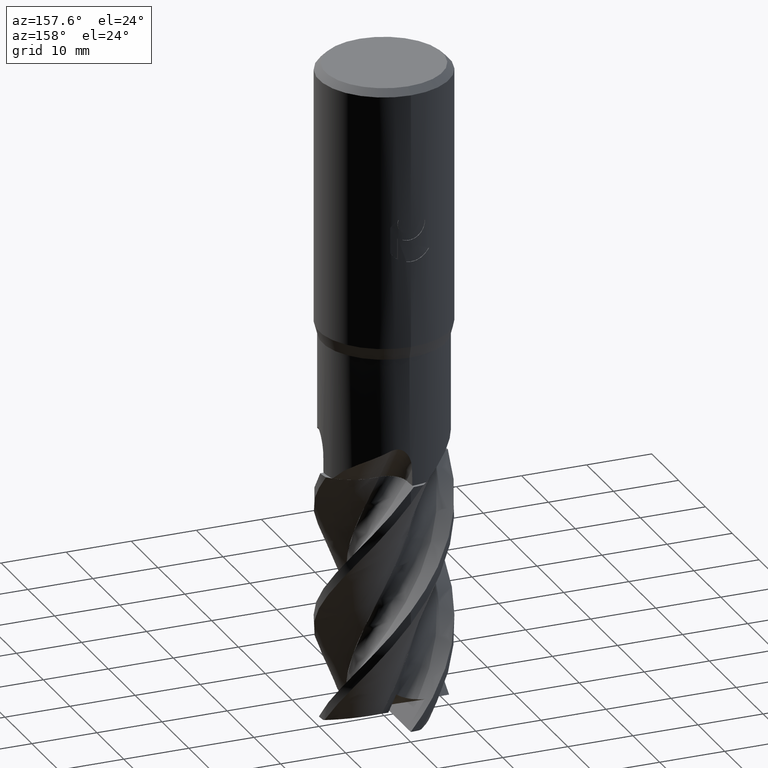
[diagram: clean part render]
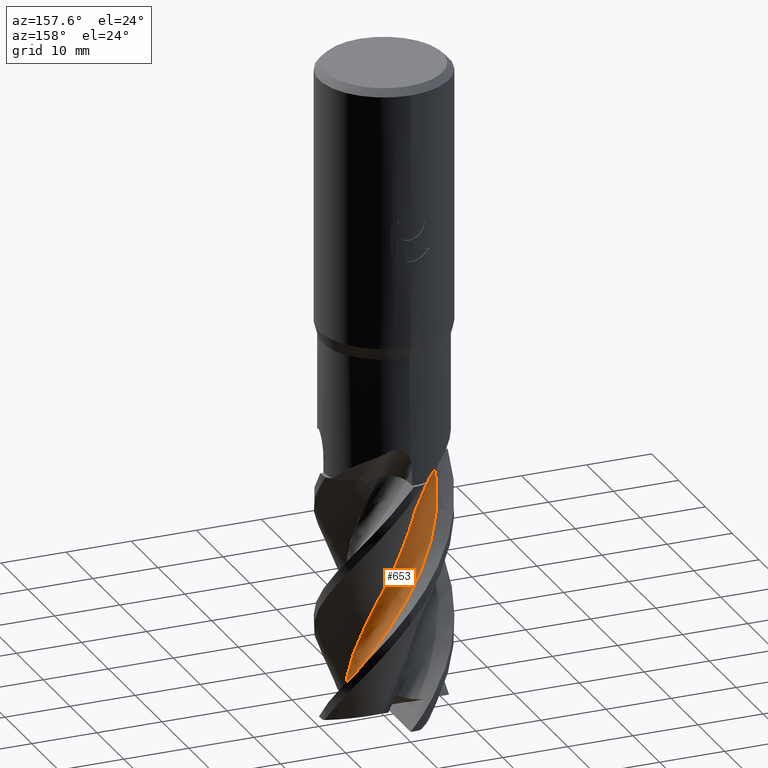
[diagram: same view with one face highlighted and labeled with its STEP entity id]
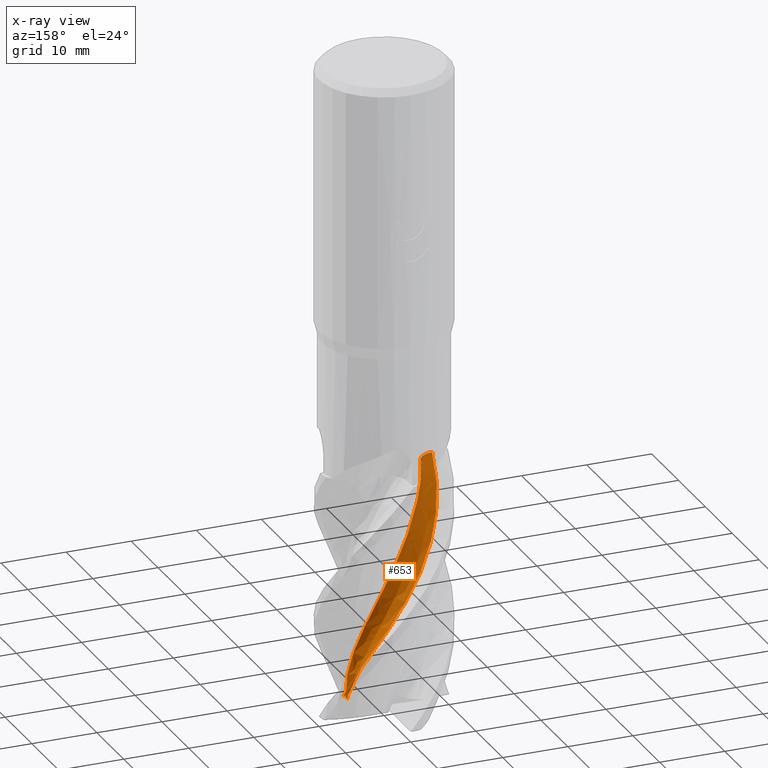
[diagram: x-ray of the same camera — body ghosted, the highlighted face saturated]
A machine part, auxiliary view. The second image highlights one B-rep face of the part: STEP entity #653.
The next image is the same camera in x-ray: the body ghosted, the highlighted face saturated — about 0% of this face is hidden behind the body in this view.
In plain terms, the highlighted face is a freeform B-spline surface patch.
Its self-contained STEP definition (entity closure, byte-faithful):
#503=VERTEX_POINT('',#1458);
#611=VERTEX_POINT('',#1575);
#651=EDGE_CURVE('',#905,#1033,#1619,.T.);
#653=ADVANCED_FACE('',(#1621),#1622,.T.);
#693=VERTEX_POINT('',#1664);
#751=EDGE_CURVE('',#905,#693,#1726,.T.);
#897=EDGE_CURVE('',#1033,#503,#1882,.T.);
#905=VERTEX_POINT('',#1891);
#1011=EDGE_CURVE('',#611,#1421,#2006,.T.);
#1033=VERTEX_POINT('',#2032);
#1091=EDGE_CURVE('',#503,#611,#2095,.T.);
#1149=EDGE_CURVE('',#1421,#693,#2160,.T.);
#1421=VERTEX_POINT('',#2462);
#1458=CARTESIAN_POINT('',(5.00926803873214,-1.40514740391976,-98.8147217949249));
#1575=CARTESIAN_POINT('',(4.91967659500782,-2.38364188820488,-98.8438318196049));
#1619=B_SPLINE_CURVE_WITH_KNOTS('',3,(#3512,#3513,#3514,#3515,#3516,#3517,#3518,#3519,#3520,#3521,#3522,#3523),.UNSPECIFIED.,.F.,.F.,(4,2,2,2,2,4),(0.0,1.48304953667506,2.54994211313905,3.38260788100948,4.09551696540701,4.84909791549422),.UNSPECIFIED.);
#1621=FACE_OUTER_BOUND('',#3525,.T.);
#1622=B_SPLINE_SURFACE_WITH_KNOTS('',3,3,((#3526,#3527,#3528,#3529,#3530,#3531,#3532,#3533,#3534,#3535,#3536,#3537,#3538,#3539,#3540,#3541,#3542,#3543,#3544,#3545,#3546,#3547,#3548,#3549,#3550,#3551,#3552,#3553,#3554,#3555,#3556,#3557,#3558,#3559,#3560,#3561,#3562,#3563,#3564,#3565,#3566,#3567,#3568,#3569,#3570,#3571,#3572,#3573,#3574,#3575,#3576,#3577,#3578),(#3579,#3580,#3581,#3582,#3583,#3584,#3585,#3586,#3587,#3588,#3589,#3590,#3591,#3592,#3593,#3594,#3595,#3596,#3597,#3598,#3599,#3600,#3601,#3602,#3603,#3604,#3605,#3606,#3607,#3608,#3609,#3610,#3611,#3612,#3613,#3614,#3615,#3616,#3617,#3618,#3619,#3620,#3621,#3622,#3623,#3624,#3625,#3626,#3627,#3628,#3629,#3630,#3631),(#3632,#3633,#3634,#3635,#3636,#3637,#3638,#3639,#3640,#3641,#3642,#3643,#3644,#3645,#3646,#3647,#3648,#3649,#3650,#3651,#3652,#3653,#3654,#3655,#3656,#3657,#3658,#3659,#3660,#3661,#3662,#3663,#3664,#3665,#3666,#3667,#3668,#3669,#3670,#3671,#3672,#3673,#3674,#3675,#3676,#3677,#3678,#3679,#3680,#3681,#3682,#3683,#3684),(#3685,#3686,#3687,#3688,#3689,#3690,#3691,#3692,#3693,#3694,#3695,#3696,#3697,#3698,#3699,#3700,#3701,#3702,#3703,#3704,#3705,#3706,#3707,#3708,#3709,#3710,#3711,#3712,#3713,#3714,#3715,#3716,#3717,#3718,#3719,#3720,#3721,#3722,#3723,#3724,#3725,#3726,#3727,#3728,#3729,#3730,#3731,#3732,#3733,#3734,#3735,#3736,#3737),(#3738,#3739,#3740,#3741,#3742,#3743,#3744,#3745,#3746,#3747,#3748,#3749,#3750,#3751,#3752,#3753,#3754,#3755,#3756,#3757,#3758,#3759,#3760,#3761,#3762,#3763,#3764,#3765,#3766,#3767,#3768,#3769,#3770,#3771,#3772,#3773,#3774,#3775,#3776,#3777,#3778,#3779,#3780,#3781,#3782,#3783,#3784,#3785,#3786,#3787,#3788,#3789,#3790),(#3791,#3792,#3793,#3794,#3795,#3796,#3797,#3798,#3799,#3800,#3801,#3802,#3803,#3804,#3805,#3806,#3807,#3808,#3809,#3810,#3811,#3812,#3813,#3814,#3815,#3816,#3817,#3818,#3819,#3820,#3821,#3822,#3823,#3824,#3825,#3826,#3827,#3828,#3829,#3830,#3831,#3832,#3833,#3834,#3835,#3836,#3837,#3838,#3839,#3840,#3841,#3842,#3843),(#3844,#3845,#3846,#3847,#3848,#3849,#3850,#3851,#3852,#3853,#3854,#3855,#3856,#3857,#3858,#3859,#3860,#3861,#3862,#3863,#3864,#3865,#3866,#3867,#3868,#3869,#3870,#3871,#3872,#3873,#3874,#3875,#3876,#3877,#3878,#3879,#3880,#3881,#3882,#3883,#3884,#3885,#3886,#3887,#3888,#3889,#3890,#3891,#3892,#3893,#3894,#3895,#3896)),.UNSPECIFIED.,.F.,.F.,.F.,(4,1,1,1,4),(4,1,2,1,2,1,2,1,2,1,2,1,2,1,2,1,2,1,2,1,2,1,2,1,2,1,2,1,2,1,2,1,2,1,4),(-4.63397436365283E-016,0.392699081681333,0.785398163362667,1.178097245044,1.57079632672533),(0.0,1.22301984073094,2.44603968146188,3.66905952219281,4.89207936292375,7.33811904438563,9.7841587258475,12.2301984073094,14.6762380887713,17.1222777702331,19.568317451695,22.0143571331569,24.4603968146188,26.9064364960806,29.3524761775425,31.7985158590044,34.2445555404663,36.6905952219281,39.13663490339,41.5826745848519,44.0287142663138,46.4747539477756,48.9207936292375,51.3668333106994,53.8128729921613,56.2589126736231,58.704952355085,61.1509920365469,63.5970317180088,66.0430713994706,68.4891110809325,70.9351507623944,73.3811904438563,75.8272301253181,78.27326980678),.UNSPECIFIED.);
#1664=CARTESIAN_POINT('',(-7.51982989433022,-0.325351321170704,-62.0));
#1726=B_SPLINE_CURVE_WITH_KNOTS('',3,(#4688,#4689,#4690,#4691,#4692,#4693,#4694,#4695,#4696,#4697,#4698,#4699,#4700,#4701,#4702,#4703,#4704,#4705,#4706,#4707,#4708,#4709,#4710,#4711,#4712,#4713,#4714,#4715,#4716,#4717,#4718,#4719,#4720,#4721,#4722,#4723,#4724,#4725,#4726,#4727,#4728,#4729,#4730,#4731,#4732,#4733,#4734,#4735,#4736,#4737,#4738,#4739,#4740),.UNSPECIFIED.,.F.,.F.,(4,1,2,1,2,1,2,1,2,1,2,1,2,1,2,1,2,1,2,1,2,1,2,1,2,1,2,1,2,1,2,1,2,1,4),(0.0,1.22301984073094,2.44603968146188,3.66905952219281,4.89207936292375,7.33811904438563,9.7841587258475,12.2301984073094,14.6762380887713,17.1222777702331,19.568317451695,22.0143571331569,24.4603968146188,26.9064364960806,29.3524761775425,31.7985158590044,34.2445555404663,36.6905952219281,39.13663490339,41.5826745848519,44.0287142663138,46.4747539477756,48.9207936292375,51.3668333106994,53.8128729921613,56.2589126736231,58.704952355085,61.1509920365469,63.5970317180088,66.0430713994706,68.4891110809325,70.9351507623944,73.3811904438563,75.8272301253181,78.27326980678),.UNSPECIFIED.);
#1882=B_SPLINE_CURVE_WITH_KNOTS('',3,(#5765,#5766,#5767,#5768,#5769,#5770,#5771,#5772,#5773,#5774),.UNSPECIFIED.,.F.,.F.,(4,2,2,2,4),(0.0,2.7867813321825,4.954879349938,8.66180029290225,11.9106485367568),.UNSPECIFIED.);
#1891=CARTESIAN_POINT('',(7.20321874456389,2.18351594832898,-96.4458820659791));
#2006=B_SPLINE_CURVE_WITH_KNOTS('',3,(#7291,#7292,#7293,#7294,#7295,#7296,#7297,#7298,#7299,#7300,#7301,#7302,#7303,#7304,#7305,#7306,#7307,#7308,#7309,#7310,#7311,#7312,#7313,#7314,#7315,#7316,#7317,#7318,#7319,#7320,#7321,#7322,#7323,#7324,#7325,#7326,#7327,#7328,#7329,#7330,#7331,#7332,#7333,#7334,#7335,#7336,#7337,#7338,#7339,#7340),.UNSPECIFIED.,.F.,.F.,(4,2,2,2,2,2,2,2,2,2,2,2,2,2,2,2,2,2,2,2,2,2,2,2,4),(-42.679676127236,-41.6485899800613,-41.3032971720583,-39.9342822100521,-37.2055180687017,-35.3587912138366,-34.1428194369857,-31.2942561794629,-30.9484155227596,-30.5525449358868,-26.5344339727277,-25.475489873168,-23.7536237439947,-21.1447417480226,-20.2111278288229,-19.2419910670451,-16.6354990129299,-14.172380679322,-11.5471699320563,-8.99212924228542,-6.42373221622476,-5.13591624704834,-4.13358972756133,-3.09989082409962,-0.0),.UNSPECIFIED.);
#2032=CARTESIAN_POINT('',(5.1968307244328,-0.257245450401672,-96.1044122415691));
#2095=B_SPLINE_CURVE_WITH_KNOTS('',3,(#8507,#8508,#8509,#8510,#8511,#8512),.UNSPECIFIED.,.F.,.F.,(4,2,4),(0.0,1.04268686366697,2.03928515385876),.UNSPECIFIED.);
#2160=B_SPLINE_CURVE_WITH_KNOTS('',3,(#8727,#8728,#8729,#8730,#8731,#8732,#8733,#8734,#8735,#8736),.UNSPECIFIED.,.F.,.F.,(4,2,2,2,4),(0.0,1.12331201311352,2.24660096088183,3.36979158465113,4.49322329760528),.UNSPECIFIED.);
#2462=CARTESIAN_POINT('',(-4.79210471077056,2.63124668642199,-62.0));
#3512=CARTESIAN_POINT('',(7.20321874456343,2.18351594832735,-96.4458820659822));
#3513=CARTESIAN_POINT('',(6.78370801795247,1.96135189469192,-96.5838518211251));
#3514=CARTESIAN_POINT('',(6.3980514059972,1.68888621628862,-96.6611155147687));
#3515=CARTESIAN_POINT('',(5.84699169950655,1.16377105417767,-96.6728575695141));
#3516=CARTESIAN_POINT('',(5.64065792703185,0.917841400956467,-96.6414281133217));
#3517=CARTESIAN_POINT('',(5.36254824311846,0.447173365442589,-96.4979391261483));
#3518=CARTESIAN_POINT('',(5.27449545639829,0.234987262356175,-96.4066152572139));
#3519=CARTESIAN_POINT('',(5.19150236962163,-0.156460579510014,-96.1814392859229));
#3520=CARTESIAN_POINT('',(5.1865646287731,-0.32896320641978,-96.0596325812294));
#3521=CARTESIAN_POINT('',(5.24288004120368,-0.658344975367452,-95.7801335518394));
#3522=CARTESIAN_POINT('',(5.30688540677715,-0.807909506412538,-95.6257915027464));
#3523=CARTESIAN_POINT('',(5.39817917970799,-0.936855582453384,-95.4669554250024));
#3525=EDGE_LOOP('',(#10926,#10927,#10928,#10929,#10930,#10931));
#3526=CARTESIAN_POINT('',(-3.08721113193414,-4.51190119880654,-120.0));
#3527=CARTESIAN_POINT('',(-3.11610382286491,-4.51524322899714,-119.593768411031));
#3528=CARTESIAN_POINT('',(-3.06013871840661,-4.58917170861519,-118.78060100899));
#3529=CARTESIAN_POINT('',(-2.75699189989394,-4.78076581627041,-117.967197499112));
#3530=CARTESIAN_POINT('',(-2.31605559725722,-4.9961917282453,-117.155338148176));
#3531=CARTESIAN_POINT('',(-1.89714969170703,-5.16883258850242,-116.343747876049));
#3532=CARTESIAN_POINT('',(-1.52872133401086,-5.27994279550028,-115.531622990232));
#3533=CARTESIAN_POINT('',(-1.01082684962153,-5.41503697790628,-114.312424192179));
#3534=CARTESIAN_POINT('',(-0.302521388352476,-5.52823535868766,-112.686807230555));
#3535=CARTESIAN_POINT('',(0.446022687883692,-5.49588480233488,-111.061476902276));
#3536=CARTESIAN_POINT('',(1.20967755949133,-5.37718956688334,-109.436843998997));
#3537=CARTESIAN_POINT('',(1.93792388798994,-5.18525835775153,-107.812284087169));
#3538=CARTESIAN_POINT('',(2.60798490320984,-4.85589478790535,-106.187215946125));
#3539=CARTESIAN_POINT('',(3.25084516038129,-4.45006683834334,-104.562078291245));
#3540=CARTESIAN_POINT('',(3.83837816597191,-3.98905611551164,-102.937092088323));
#3541=CARTESIAN_POINT('',(4.32325333384168,-3.41961334817729,-101.311965084728));
#3542=CARTESIAN_POINT('',(4.75260311258176,-2.7900459813916,-99.6870055977501));
#3543=CARTESIAN_POINT('',(5.10836857642134,-2.13291553327871,-98.0621508571898));
#3544=CARTESIAN_POINT('',(5.32667714479379,-1.41806321474878,-96.4370327670634));
#3545=CARTESIAN_POINT('',(5.47022389499008,-0.669664459637298,-94.812021589412));
#3546=CARTESIAN_POINT('',(5.53528513095286,0.074979799030407,-93.1871324521088));
#3547=CARTESIAN_POINT('',(5.45117572326192,0.817812643737092,-91.5620140537044));
#3548=CARTESIAN_POINT('',(5.28522627424691,1.56142828315366,-89.9370154945107));
#3549=CARTESIAN_POINT('',(5.04879543739392,2.27038069927681,-88.3121338328947));
#3550=CARTESIAN_POINT('',(4.67620377986173,2.91845536995069,-86.6870149801742));
#3551=CARTESIAN_POINT('',(4.22813837476447,3.53476678594239,-85.0620139811539));
#3552=CARTESIAN_POINT('',(3.72918981299303,4.09122429010573,-83.4371311546494));
#3553=CARTESIAN_POINT('',(3.12955821834894,4.53763024613877,-81.8120125834688));
#3554=CARTESIAN_POINT('',(2.47334225150787,4.92486463395386,-80.1870119231299));
#3555=CARTESIAN_POINT('',(1.79424518160549,5.23695086383405,-78.5621291786726));
#3556=CARTESIAN_POINT('',(1.06653151763088,5.40802566058477,-76.9370105313418));
#3557=CARTESIAN_POINT('',(0.310430194038539,5.50230381356891,-75.3120098946399));
#3558=CARTESIAN_POINT('',(-0.436774962016068,5.51853203030275,-73.6871272016574));
#3559=CARTESIAN_POINT('',(-1.17249884247416,5.38604359729932,-72.0620086700829));
#3560=CARTESIAN_POINT('',(-1.90372203524111,5.17180243448855,-70.4370081889914));
#3561=CARTESIAN_POINT('',(-2.59573028525208,4.88949172907576,-68.8121254918461));
#3562=CARTESIAN_POINT('',(-3.21804584125014,4.47530946613914,-67.187006322503));
#3563=CARTESIAN_POINT('',(-3.80371712525013,3.98791128071872,-65.5620047974434));
#3564=CARTESIAN_POINT('',(-4.32635387599371,3.45363913235864,-63.9371221468102));
#3565=CARTESIAN_POINT('',(-4.73259594212301,2.82607794431654,-62.3120059091278));
#3566=CARTESIAN_POINT('',(-5.07608650998662,2.14593062269123,-60.6870087802051));
#3567=CARTESIAN_POINT('',(-5.34308278835049,1.44790096699008,-59.0621251400353));
#3568=CARTESIAN_POINT('',(-5.46620504481946,0.710519042036873,-57.4369970062386));
#3569=CARTESIAN_POINT('',(-5.5108114848989,-0.0502646993474023,-55.8119838471334));
#3570=CARTESIAN_POINT('',(-5.47807490782117,-0.797020048069303,-54.1871059758979));
#3571=CARTESIAN_POINT('',(-5.29786995778533,-1.52205615741117,-52.5620173136074));
#3572=CARTESIAN_POINT('',(-5.03673322896618,-2.23690988545075,-50.9370507379584));
#3573=CARTESIAN_POINT('',(-4.71011061627908,-2.90897421936311,-49.3121453408592));
#3574=CARTESIAN_POINT('',(-4.25438587443237,-3.50491982800874,-47.6869503066768));
#3575=CARTESIAN_POINT('',(-3.72611066974083,-4.06004007450653,-46.0618862290408));
#3576=CARTESIAN_POINT('',(-3.15811152350845,-4.54539028834498,-44.437087585809));
#3577=CARTESIAN_POINT('',(-2.51614121609505,-4.90452672686972,-42.8120826714825));
#3578=CARTESIAN_POINT('',(-2.17419623596112,-5.05180807732969,-41.9995734139953));
#3579=CARTESIAN_POINT('',(-2.71127897221626,-4.52934432591632,-120.0));
#3580=CARTESIAN_POINT('',(-2.74015505370853,-4.53232836280882,-119.593767296312));
#3581=CARTESIAN_POINT('',(-2.68366624048972,-4.59771450453499,-118.780678726627));
#3582=CARTESIAN_POINT('',(-2.38064767069302,-4.76466743936391,-117.967380480443));
#3583=CARTESIAN_POINT('',(-1.94250617083635,-4.94766482533131,-117.155445066758));
#3584=CARTESIAN_POINT('',(-1.52828401234983,-5.09033922774199,-116.343747537785));
#3585=CARTESIAN_POINT('',(-1.1667846246332,-5.17610511105641,-115.531578732684));
#3586=CARTESIAN_POINT('',(-0.660213958936956,-5.27609667054204,-114.312433028779));
#3587=CARTESIAN_POINT('',(0.028452494478713,-5.34395359608019,-112.686888671081));
#3588=CARTESIAN_POINT('',(0.747769790907062,-5.26945195452043,-111.061596945888));
#3589=CARTESIAN_POINT('',(1.47693997290957,-5.11093068847094,-109.436920626933));
#3590=CARTESIAN_POINT('',(2.16749723577127,-4.88381846758501,-107.812308796316));
#3591=CARTESIAN_POINT('',(2.79395218233255,-4.52768749684163,-106.187248647254));
#3592=CARTESIAN_POINT('',(3.38996374188623,-4.09942496932643,-104.56212714528));
#3593=CARTESIAN_POINT('',(3.92928858479677,-3.62122771992231,-102.937139256586));
#3594=CARTESIAN_POINT('',(4.36344684794768,-3.04452534334458,-101.312027041979));
#3595=CARTESIAN_POINT('',(4.74078735217579,-2.41299590417127,-99.687062777381));
#3596=CARTESIAN_POINT('',(5.04546004706388,-1.75927980513952,-98.0621907776626));
#3597=CARTESIAN_POINT('',(5.21437328892092,-1.05793210690873,-96.4370865457849));
#3598=CARTESIAN_POINT('',(5.30941955400915,-0.328419130351793,-94.8120765814974));
#3599=CARTESIAN_POINT('',(5.32894887175681,0.392765328828374,-93.1871743270863));
#3600=CARTESIAN_POINT('',(5.20488670233559,1.10355393115661,-91.562069756259));
#3601=CARTESIAN_POINT('',(5.00195674472646,1.81055589075862,-89.9370709695596));
#3602=CARTESIAN_POINT('',(4.73308723157939,2.47988046417051,-88.31217529739));
#3603=CARTESIAN_POINT('',(4.33658434704947,3.0826659126099,-86.6870702706053));
#3604=CARTESIAN_POINT('',(3.86915056258192,3.65067213100175,-85.0620694232556));
#3605=CARTESIAN_POINT('',(3.35620068101032,4.1578657280283,-83.43717262725));
#3606=CARTESIAN_POINT('',(2.75264474890478,4.55320795414356,-81.8120679549066));
#3607=CARTESIAN_POINT('',(2.09787179678228,4.88842011111799,-80.1870672945677));
#3608=CARTESIAN_POINT('',(1.42552304953442,5.14973893512046,-78.5621706549631));
#3609=CARTESIAN_POINT('',(0.714519157868812,5.27240213750829,-76.9370658859262));
#3610=CARTESIAN_POINT('',(-0.0195664119033301,5.31952387557967,-75.3120652492243));
#3611=CARTESIAN_POINT('',(-0.740387232163096,5.29185704569674,-73.6871686588437));
#3612=CARTESIAN_POINT('',(-1.44152412750207,5.12159728235738,-72.0620639775671));
#3613=CARTESIAN_POINT('',(-2.13379125750352,4.87284688030507,-70.4370634964756));
#3614=CARTESIAN_POINT('',(-2.78413291764192,4.56075722651411,-68.8121668911592));
#3615=CARTESIAN_POINT('',(-3.35969229723183,4.1256772185871,-67.1870616349403));
#3616=CARTESIAN_POINT('',(-3.89589637195146,3.62211181659908,-65.5620602615512));
#3617=CARTESIAN_POINT('',(-4.36845898641736,3.07709005353531,-63.9371636709967));
#3618=CARTESIAN_POINT('',(-4.72348879606364,2.4489526352061,-62.3120610576898));
#3619=CARTESIAN_POINT('',(-5.01516216711449,1.77364777594597,-60.6870634737557));
#3620=CARTESIAN_POINT('',(-5.23194243585864,1.08567219030151,-59.0621660705605));
#3621=CARTESIAN_POINT('',(-5.30784750065215,0.368131073103944,-57.4370528275824));
#3622=CARTESIAN_POINT('',(-5.30683194237082,-0.367595479836302,-55.8120413368525));
#3623=CARTESIAN_POINT('',(-5.23201741989392,-1.08514697794994,-54.187148984785));
#3624=CARTESIAN_POINT('',(-5.01640447576203,-1.77321796469544,-52.5620706908776));
#3625=CARTESIAN_POINT('',(-4.72340849788002,-2.44698727582524,-50.9370998684551));
#3626=CARTESIAN_POINT('',(-4.36978467762515,-3.07554295969913,-49.3121827581651));
#3627=CARTESIAN_POINT('',(-3.8962034310134,-3.62331956293507,-47.6870109023809));
#3628=CARTESIAN_POINT('',(-3.35499548802484,-4.1277638549251,-46.0619544082691));
#3629=CARTESIAN_POINT('',(-2.77963500722246,-4.56244713146086,-44.4371333955843));
#3630=CARTESIAN_POINT('',(-2.14042067898384,-4.87115363224796,-42.8121307750391));
#3631=CARTESIAN_POINT('',(-1.80244487066501,-4.99324041328533,-41.9996236409386));
#3632=CARTESIAN_POINT('',(-1.96650945388016,-4.71371697069067,-120.0));
#3633=CARTESIAN_POINT('',(-1.99520995775684,-4.71599177181313,-119.593765092206));
#3634=CARTESIAN_POINT('',(-1.93427700517085,-4.76450510479467,-118.780832369925));
#3635=CARTESIAN_POINT('',(-1.62171600567318,-4.88213507705846,-117.967742225636));
#3636=CARTESIAN_POINT('',(-1.17626738884543,-4.99917768779753,-117.155656438101));
#3637=CARTESIAN_POINT('',(-0.759494224203956,-5.08006922814382,-116.343746865174));
#3638=CARTESIAN_POINT('',(-0.401771410103513,-5.11240177176297,-115.531491246598));
#3639=CARTESIAN_POINT('',(0.0961153625941529,-5.13769980292694,-114.31245048085));
#3640=CARTESIAN_POINT('',(0.763542598808308,-5.10708324389095,-112.687049679157));
#3641=CARTESIAN_POINT('',(1.44118054749512,-4.9366748703023,-111.06183427399));
#3642=CARTESIAN_POINT('',(2.1172331108743,-4.68480501157966,-109.437072107903));
#3643=CARTESIAN_POINT('',(2.74641827389567,-4.37235816017741,-107.812357652381));
#3644=CARTESIAN_POINT('',(3.29632381497228,-3.94536315017934,-106.187313289137));
#3645=CARTESIAN_POINT('',(3.8075790660861,-3.45361104869715,-104.562223733573));
#3646=CARTESIAN_POINT('',(4.25734230371342,-2.9218774226255,-102.937232425479));
#3647=CARTESIAN_POINT('',(4.59297502829854,-2.31049071593157,-101.312149682115));
#3648=CARTESIAN_POINT('',(4.86709907029204,-1.65435590477372,-99.6871756644836));
#3649=CARTESIAN_POINT('',(5.06825002702179,-0.987149426049346,-98.06226979345));
#3650=CARTESIAN_POINT('',(5.13302316659772,-0.293162640070797,-96.4371928270697));
#3651=CARTESIAN_POINT('',(5.12357870699383,0.417873469702663,-94.8121853342438));
#3652=CARTESIAN_POINT('',(5.04273433580806,1.11025454395989,-93.1872570711436));
#3653=CARTESIAN_POINT('',(4.8260406964872,1.77285578137096,-91.5621799218547));
#3654=CARTESIAN_POINT('',(4.53460545442057,2.42135158292166,-89.937180596109));
#3655=CARTESIAN_POINT('',(4.18511378371833,3.02433673107121,-88.3122571861906));
#3656=CARTESIAN_POINT('',(3.72278872730281,3.54607139969002,-86.6871797900377));
#3657=CARTESIAN_POINT('',(3.19741724172714,4.02518962683365,-85.062178816103));
#3658=CARTESIAN_POINT('',(2.63688025275049,4.43944395408805,-83.4372547166399));
#3659=CARTESIAN_POINT('',(2.00517120845339,4.73424075790166,-81.8121774339198));
#3660=CARTESIAN_POINT('',(1.33259646175622,4.96485657182946,-80.1871767482638));
#3661=CARTESIAN_POINT('',(0.653553261214557,5.12197834921009,-78.5622526495342));
#3662=CARTESIAN_POINT('',(-0.0432895485413148,5.14119405235924,-76.9371753353269));
#3663=CARTESIAN_POINT('',(-0.752105168921777,5.08526784390849,-75.3121746658924));
#3664=CARTESIAN_POINT('',(-1.43762381377432,4.95933747529776,-73.6872505830202));
#3665=CARTESIAN_POINT('',(-2.08462147588276,4.6997970703828,-72.0621734027514));
#3666=CARTESIAN_POINT('',(-2.7127159282532,4.36655131744296,-70.4371727511607));
#3667=CARTESIAN_POINT('',(-3.2915838564978,3.97834717065632,-68.8122487418995));
#3668=CARTESIAN_POINT('',(-3.78196084241997,3.48288733145813,-67.1871710568239));
#3669=CARTESIAN_POINT('',(-4.22568037918327,2.92732309266253,-65.5621698389295));
#3670=CARTESIAN_POINT('',(-4.60239055511848,2.3408941055668,-63.9372458112582));
#3671=CARTESIAN_POINT('',(-4.855246527561,1.69123924828501,-62.3121700571528));
#3672=CARTESIAN_POINT('',(-5.04138171137786,1.00501167355077,-60.6871716262244));
#3673=CARTESIAN_POINT('',(-5.15375298521497,0.317170949548761,-59.0622468310175));
#3674=CARTESIAN_POINT('',(-5.12735357444128,-0.379473358922768,-57.4371634710358));
#3675=CARTESIAN_POINT('',(-5.02514904489005,-1.08323817792723,-55.812154703318));
#3676=CARTESIAN_POINT('',(-4.85458303673338,-1.75912707867951,-54.1872341777349));
#3677=CARTESIAN_POINT('',(-4.55346944949782,-2.38736375315557,-52.5621761691424));
#3678=CARTESIAN_POINT('',(-4.18043068328222,-2.99165076669003,-50.9371970425849));
#3679=CARTESIAN_POINT('',(-3.75551411361825,-3.54394478249706,-49.3122570516887));
#3680=CARTESIAN_POINT('',(-3.22707243741104,-4.0025045371795,-47.6871300079911));
#3681=CARTESIAN_POINT('',(-2.63985256163473,-4.41076109121629,-46.0620898836906));
#3682=CARTESIAN_POINT('',(-2.02962425440365,-4.74705916077375,-44.4372235998133));
#3683=CARTESIAN_POINT('',(-1.37586664208524,-4.95383110475447,-42.8122259028435));
#3684=CARTESIAN_POINT('',(-1.03580861647093,-5.02396095165926,-41.9997229369162));
#3685=CARTESIAN_POINT('',(-1.04014691255924,-5.39678006242423,-120.0));
#3686=CARTESIAN_POINT('',(-1.06819694764865,-5.39817270285624,-119.593762365099));
#3687=CARTESIAN_POINT('',(-0.991418864307069,-5.42585257725951,-118.781022492732));
#3688=CARTESIAN_POINT('',(-0.637318856126149,-5.48060205812712,-117.968189852331));
#3689=CARTESIAN_POINT('',(-0.143881718771949,-5.51043028236374,-117.155917996656));
#3690=CARTESIAN_POINT('',(0.311893371768255,-5.50715923600594,-116.34374603401));
#3691=CARTESIAN_POINT('',(0.695055516107874,-5.46326873854387,-115.53138298373));
#3692=CARTESIAN_POINT('',(1.22378476417906,-5.38006147451193,-114.312472088229));
#3693=CARTESIAN_POINT('',(1.9183045388431,-5.20077477855372,-112.687248918279));
#3694=CARTESIAN_POINT('',(2.59323288315419,-4.87351992542267,-111.062127927064));
#3695=CARTESIAN_POINT('',(3.24925465136418,-4.46178295209929,-109.437259574533));
#3696=CARTESIAN_POINT('',(3.842368423041,-3.99583721624587,-107.812418086386));
#3697=CARTESIAN_POINT('',(4.32686099838518,-3.4266861844244,-106.187393299862));
#3698=CARTESIAN_POINT('',(4.75709575792637,-2.79828733630373,-104.562343232121));
#3699=CARTESIAN_POINT('',(5.11346504681285,-2.14094302024582,-102.937347774356));
#3700=CARTESIAN_POINT('',(5.33245833978634,-1.42492755592834,-101.312301341112));
#3701=CARTESIAN_POINT('',(5.47765591367728,-0.675439921343913,-99.687315451326));
#3702=CARTESIAN_POINT('',(5.54307666143792,0.0698899549640902,-98.0623675175485));
#3703=CARTESIAN_POINT('',(5.45929290525033,0.813456582260693,-96.4373243464063));
#3704=CARTESIAN_POINT('',(5.2944245889261,1.55886786407015,-94.8123199020892));
#3705=CARTESIAN_POINT('',(5.05793426298182,2.26894879744849,-93.1873594747322));
#3706=CARTESIAN_POINT('',(4.6851975585094,2.91794061901117,-91.562316218687));
#3707=CARTESIAN_POINT('',(4.23751437773188,3.53615712551153,-89.9373162742366));
#3708=CARTESIAN_POINT('',(3.73820355396586,4.09348133930051,-88.3123585835957));
#3709=CARTESIAN_POINT('',(3.13812613025241,4.54067015558111,-86.6873151539657));
#3710=CARTESIAN_POINT('',(2.48143065911342,4.92985457539898,-85.0623143383641));
#3711=CARTESIAN_POINT('',(1.80158931064072,5.24261854880117,-83.4373562195207));
#3712=CARTESIAN_POINT('',(1.07314384528652,5.4142273119319,-81.8123129000058));
#3713=CARTESIAN_POINT('',(0.315853458382786,5.51009855407657,-80.1873121936675));
#3714=CARTESIAN_POINT('',(-0.432282071048326,5.52665307045854,-78.5623541308695));
#3715=CARTESIAN_POINT('',(-1.16888259642954,5.39436808179431,-76.9373107253257));
#3716=CARTESIAN_POINT('',(-1.90183033093148,5.181118099254,-75.312310104903));
#3717=CARTESIAN_POINT('',(-2.59483065879029,4.8987356481145,-73.6873520065913));
#3718=CARTESIAN_POINT('',(-3.21804644036778,4.48437951457015,-72.0623086647308));
#3719=CARTESIAN_POINT('',(-3.80570628352276,3.99719051204862,-70.4373080877586));
#3720=CARTESIAN_POINT('',(-4.32920983528857,3.46246715675284,-68.8123499498447));
#3721=CARTESIAN_POINT('',(-4.7361906490739,2.83442593307603,-67.1873064662065));
#3722=CARTESIAN_POINT('',(-5.08158260207858,2.15370399291291,-65.5623054233884));
#3723=CARTESIAN_POINT('',(-5.3492174040874,1.45486323444164,-63.9373474384235));
#3724=CARTESIAN_POINT('',(-5.47281924301116,0.716733823151005,-62.3123049733911));
#3725=CARTESIAN_POINT('',(-5.51895560277328,-0.0452161722197418,-60.6873054179087));
#3726=CARTESIAN_POINT('',(-5.48654544502932,-0.792805882073539,-59.0623468778797));
#3727=CARTESIAN_POINT('',(-5.30636299959612,-1.51921643631206,-57.4373001969335));
#3728=CARTESIAN_POINT('',(-5.04556951052478,-2.23677193136874,-55.8122951715114));
#3729=CARTESIAN_POINT('',(-4.71838188343414,-2.90988527916454,-54.1873394708488));
#3730=CARTESIAN_POINT('',(-4.26442214568734,-3.50427719839856,-52.5623067560532));
#3731=CARTESIAN_POINT('',(-3.74056303095947,-4.05821480126146,-50.9373172215612));
#3732=CARTESIAN_POINT('',(-3.173061421742,-4.5457407798209,-49.3123488226141));
#3733=CARTESIAN_POINT('',(-2.51737186894209,-4.91214443916154,-47.6872777802677));
#3734=CARTESIAN_POINT('',(-1.81116595850844,-5.2135042632087,-46.0622571348389));
#3735=CARTESIAN_POINT('',(-1.09613511335011,-5.43346276000876,-44.4373354443342));
#3736=CARTESIAN_POINT('',(-0.363705982706812,-5.50730865574206,-42.8123435563235));
#3737=CARTESIAN_POINT('',(0.00906373199139471,-5.50662491921201,-41.9998458076302));
#3738=CARTESIAN_POINT('',(-0.445677652747839,-6.38235254042635,-120.0));
#3739=CARTESIAN_POINT('',(-0.472789138079433,-6.38317906776506,-119.593760632028));
#3740=CARTESIAN_POINT('',(-0.373399430638991,-6.39767459476224,-118.781143312026));
#3741=CARTESIAN_POINT('',(0.043140978633992,-6.41022515367599,-117.968474310902));
#3742=CARTESIAN_POINT('',(0.614289059921369,-6.37784057435642,-117.156084211827));
#3743=CARTESIAN_POINT('',(1.13830461312422,-6.31173729473607,-116.343745504554));
#3744=CARTESIAN_POINT('',(1.57413858359665,-6.20715985944066,-115.531314187588));
#3745=CARTESIAN_POINT('',(2.17288518406021,-6.03550789011839,-114.312485813605));
#3746=CARTESIAN_POINT('',(2.94932780986428,-5.72923353816014,-112.687375530811));
#3747=CARTESIAN_POINT('',(3.68177391999129,-5.25603237626468,-111.062314543992));
#3748=CARTESIAN_POINT('',(4.38046639679866,-4.68893002354779,-109.43737870003));
#3749=CARTESIAN_POINT('',(4.99899414289225,-4.0673641106774,-107.812456491229));
#3750=CARTESIAN_POINT('',(5.47745158776997,-3.34184424263766,-106.187444150767));
#3751=CARTESIAN_POINT('',(5.88512328388211,-2.55619394902447,-104.562419165565));
#3752=CARTESIAN_POINT('',(6.20327452883521,-1.74705930386982,-102.93742107765));
#3753=CARTESIAN_POINT('',(6.3545442025981,-0.889743132103542,-101.312397720576));
#3754=CARTESIAN_POINT('',(6.41635122190278,-0.00467061221637743,-99.6874042801531));
#3755=CARTESIAN_POINT('',(6.38626756922435,0.864777402787249,-98.0624296010031));
#3756=CARTESIAN_POINT('',(6.18420610052533,1.71099941526557,-96.4374079641972));
#3757=CARTESIAN_POINT('',(5.88889718148131,2.5476464128292,-94.8124053776455));
#3758=CARTESIAN_POINT('',(5.51537994544363,3.33364183206034,-93.1874245641522));
#3759=CARTESIAN_POINT('',(4.99326817317124,4.02977368999457,-91.5624028447209));
#3760=CARTESIAN_POINT('',(4.38964143457897,4.67980744269308,-89.9374024831178));
#3761=CARTESIAN_POINT('',(3.73444049577977,5.25227778352458,-88.3124229946371));
#3762=CARTESIAN_POINT('',(2.97856780441369,5.68330848079193,-86.6874012373237));
#3763=CARTESIAN_POINT('',(2.16612764815142,6.03965801906587,-85.0624003980273));
#3764=CARTESIAN_POINT('',(1.33722406375684,6.30431044956035,-83.4374207536987));
#3765=CARTESIAN_POINT('',(0.472263581448557,6.39912518441437,-81.812398986217));
#3766=CARTESIAN_POINT('',(-0.414858296851632,6.40292534355173,-80.1873982665539));
#3767=CARTESIAN_POINT('',(-1.28061924816556,6.31605059796819,-78.5624185893367));
#3768=CARTESIAN_POINT('',(-2.11192704965581,6.05900941111515,-76.9373968251698));
#3769=CARTESIAN_POINT('',(-2.92737409885388,5.7096438273652,-75.3123961117635));
#3770=CARTESIAN_POINT('',(-3.68715686860795,5.28557940092233,-73.6874164661432));
#3771=CARTESIAN_POINT('',(-4.34764474205867,4.71908939687272,-72.0623946695953));
#3772=CARTESIAN_POINT('',(-4.95685747992642,4.07419995604593,-70.4373940431475));
#3773=CARTESIAN_POINT('',(-5.48527940790965,3.38292202047213,-68.8124142828941));
#3774=CARTESIAN_POINT('',(-5.86594652240784,2.60047616077667,-67.187392530069));
#3775=CARTESIAN_POINT('',(-6.16838900645927,1.76649446168816,-65.5623915709655));
#3776=CARTESIAN_POINT('',(-6.3782668675083,0.922056876944736,-63.9374120653849));
#3777=CARTESIAN_POINT('',(-6.4163086649395,0.0527241875563911,-62.3123906342132));
#3778=CARTESIAN_POINT('',(-6.36207809685794,-0.832759178943085,-60.687390515845));
#3779=CARTESIAN_POINT('',(-6.21876978236702,-1.69095471258741,-59.0624104607984));
#3780=CARTESIAN_POINT('',(-5.90789900598838,-2.50371492257723,-57.437386997679));
#3781=CARTESIAN_POINT('',(-5.50586363243716,-3.29469945076631,-55.8123845223313));
#3782=CARTESIAN_POINT('',(-5.03291221474523,-4.02518356726952,-54.1874063431428));
#3783=CARTESIAN_POINT('',(-4.42478745226436,-4.64679683584927,-52.5623897345528));
#3784=CARTESIAN_POINT('',(-3.74231903088286,-5.21193206308849,-50.9373936000033));
#3785=CARTESIAN_POINT('',(-3.0182990123317,-5.69418290905388,-49.3124071927275));
#3786=CARTESIAN_POINT('',(-2.20978025019843,-6.0241387166109,-47.68737157687));
#3787=CARTESIAN_POINT('',(-1.3527373175713,-6.27227025872995,-46.062363529623));
#3788=CARTESIAN_POINT('',(-0.496359962510774,-6.42484868548456,-44.4374064609299));
#3789=CARTESIAN_POINT('',(0.359620633433125,-6.40599068834641,-42.8124183299561));
#3790=CARTESIAN_POINT('',(0.789710995455859,-6.35240068985248,-41.9999238896341));
#3791=CARTESIAN_POINT('',(-0.331000865996317,-7.14099618802394,-120.0));
#3792=CARTESIAN_POINT('',(-0.357389906684574,-7.1417135266655,-119.593760315349));
#3793=CARTESIAN_POINT('',(-0.240710825589769,-7.15385784812564,-118.78116538442));
#3794=CARTESIAN_POINT('',(0.225050451809193,-7.15634917031627,-117.968526283915));
#3795=CARTESIAN_POINT('',(0.859929915396679,-7.10547519044494,-117.156114576738));
#3796=CARTESIAN_POINT('',(1.44200231426015,-7.01808495221481,-116.343745409227));
#3797=CARTESIAN_POINT('',(1.9257576182803,-6.88956987702792,-115.531301618287));
#3798=CARTESIAN_POINT('',(2.59018961932431,-6.68131040528413,-114.312488321772));
#3799=CARTESIAN_POINT('',(3.44948294566819,-6.31772831572296,-112.687398647034));
#3800=CARTESIAN_POINT('',(4.25458613381674,-5.76931732906967,-111.062348669969));
#3801=CARTESIAN_POINT('',(5.01919480053825,-5.1174163416693,-109.437400433086));
#3802=CARTESIAN_POINT('',(5.69307588773246,-4.40649246799161,-107.812463540363));
#3803=CARTESIAN_POINT('',(6.20770911959436,-3.58313022896043,-106.187453407157));
#3804=CARTESIAN_POINT('',(6.64160278474653,-2.69487742587665,-104.562433072623));
#3805=CARTESIAN_POINT('',(6.97494128741447,-1.78250971274286,-102.93743446874));
#3806=CARTESIAN_POINT('',(7.12055065178297,-0.82089327753726,-101.312415297804));
#3807=CARTESIAN_POINT('',(7.16559024425777,0.168956248982031,-99.6874205404041));
#3808=CARTESIAN_POINT('',(7.10835336848883,1.13920971782532,-98.0624409343797));
#3809=CARTESIAN_POINT('',(6.85963765172958,2.0788288767759,-96.4374232283693));
#3810=CARTESIAN_POINT('',(6.50727043856436,3.00494295075581,-94.8124210067707));
#3811=CARTESIAN_POINT('',(6.06872982353967,3.87264990597435,-93.1874364582618));
#3812=CARTESIAN_POINT('',(5.4666489218706,4.63592224480566,-91.5624186538826));
#3813=CARTESIAN_POINT('',(4.77509863606709,5.34533540813792,-89.937418250828));
#3814=CARTESIAN_POINT('',(4.02775389617174,5.96690429812871,-88.3124348107069));
#3815=CARTESIAN_POINT('',(3.17180952928188,6.42773003932796,-86.6874168509376));
#3816=CARTESIAN_POINT('',(2.25507430056082,6.803591033106,-85.0624162348598));
#3817=CARTESIAN_POINT('',(1.32209377631841,7.07664167822244,-83.4374324881318));
#3818=CARTESIAN_POINT('',(0.353466346234876,7.15898890898525,-81.8124147122741));
#3819=CARTESIAN_POINT('',(-0.637103758466778,7.13920789384191,-80.1874139938855));
#3820=CARTESIAN_POINT('',(-1.60169328510918,7.0186427294607,-78.5624303695768));
#3821=CARTESIAN_POINT('',(-2.52315605190568,6.70892976726784,-76.9374125463253));
#3822=CARTESIAN_POINT('',(-3.4241374620691,6.2967819423971,-75.3124118344253));
#3823=CARTESIAN_POINT('',(-4.26119523609348,5.80249752109903,-73.6874282226222));
#3824=CARTESIAN_POINT('',(-4.98345009325402,5.15182181769709,-72.0624104139145));
#3825=CARTESIAN_POINT('',(-5.6461688982191,4.41530818037751,-70.4374097159186));
#3826=CARTESIAN_POINT('',(-6.21755995742779,3.6288679276766,-68.81242612084));
#3827=CARTESIAN_POINT('',(-6.62141291466521,2.7446159777285,-67.1874081165101));
#3828=CARTESIAN_POINT('',(-6.93650351684759,1.80528914113552,-65.5624074474808));
#3829=CARTESIAN_POINT('',(-7.14795530120102,0.85644815488876,-63.9374237496563));
#3830=CARTESIAN_POINT('',(-7.16677571278591,-0.115516538870276,-62.3124063931073));
#3831=CARTESIAN_POINT('',(-7.08224806384149,-1.10268573504471,-60.6874059545396));
#3832=CARTESIAN_POINT('',(-6.89885863292587,-2.05729215936168,-59.0624220778847));
#3833=CARTESIAN_POINT('',(-6.52953046832886,-2.95657352634968,-57.4374029637518));
#3834=CARTESIAN_POINT('',(-6.05924175382948,-3.82881413688899,-55.8124007390829));
#3835=CARTESIAN_POINT('',(-5.51115536421876,-4.63181826053563,-54.1874186034501));
#3836=CARTESIAN_POINT('',(-4.81502986085045,-5.30952670799127,-52.5624049167137));
#3837=CARTESIAN_POINT('',(-4.03773565612286,-5.92202245825273,-50.9374075323034));
#3838=CARTESIAN_POINT('',(-3.21597506200468,-6.44095532927386,-49.3124177814173));
#3839=CARTESIAN_POINT('',(-2.30403501834235,-6.78745364987278,-47.6873888865328));
#3840=CARTESIAN_POINT('',(-1.34051675169559,-7.04128498522235,-46.062382794894));
#3841=CARTESIAN_POINT('',(-0.379898561118319,-7.18842628325585,-44.4374195320029));
#3842=CARTESIAN_POINT('',(0.575824044124422,-7.14399517412147,-42.8124319713481));
#3843=CARTESIAN_POINT('',(1.05471378586021,-7.07244545952847,-41.9999381552033));
#3844=CARTESIAN_POINT('',(-0.348406399777329,-7.51693009017606,-120.0));
#3845=CARTESIAN_POINT('',(-0.374437442715427,-7.51766399338695,-119.593760378705));
#3846=CARTESIAN_POINT('',(-0.249215978276747,-7.53033117938851,-118.781160969234));
#3847=CARTESIAN_POINT('',(0.241186472302889,-7.53269183268163,-117.968515887395));
#3848=CARTESIAN_POINT('',(0.908494174925453,-7.47901977231298,-117.156108502827));
#3849=CARTESIAN_POINT('',(1.52053256174088,-7.38694276948466,-116.343745428496));
#3850=CARTESIAN_POINT('',(2.02963149337607,-7.25149621381663,-115.53130413206));
#3851=CARTESIAN_POINT('',(2.72916499351432,-7.03190937675232,-114.312487821094));
#3852=CARTESIAN_POINT('',(3.63379781200078,-6.6486837874688,-112.687394028356));
#3853=CARTESIAN_POINT('',(4.48104915109853,-6.07104179623086,-111.062341831817));
#3854=CARTESIAN_POINT('',(5.28548042698173,-5.38465213634175,-109.437396097497));
#3855=CARTESIAN_POINT('',(5.99453871688223,-4.63603566661421,-107.812462119995));
#3856=CARTESIAN_POINT('',(6.53593502358337,-3.76906469020172,-106.187451564383));
#3857=CARTESIAN_POINT('',(6.99225855023864,-2.83396094012424,-104.562430281908));
#3858=CARTESIAN_POINT('',(7.34277879097564,-1.87338334668337,-102.937431785487));
#3859=CARTESIAN_POINT('',(7.49564266409871,-0.861049289898261,-101.312411799721));
#3860=CARTESIAN_POINT('',(7.5426391574397,0.180809722361989,-99.687417269827));
#3861=CARTESIAN_POINT('',(7.48198279339175,1.20215561156055,-98.0624386755875));
#3862=CARTESIAN_POINT('',(7.21975754063045,2.19116873839692,-96.4374201764214));
#3863=CARTESIAN_POINT('',(6.8484996794182,3.16578142598609,-94.8124178789876));
#3864=CARTESIAN_POINT('',(6.38649472668123,4.0790179395703,-93.1874340776671));
#3865=CARTESIAN_POINT('',(5.75236557778732,4.88223984245148,-91.5624154956503));
#3866=CARTESIAN_POINT('',(5.0241979217678,5.6286298516352,-89.9374150925956));
#3867=CARTESIAN_POINT('',(4.23722208692985,6.282633451157,-88.3124324224031));
#3868=CARTESIAN_POINT('',(3.33598611301374,6.76736590241679,-86.6874137811898));
#3869=CARTESIAN_POINT('',(2.37094374453506,7.16259043100062,-85.0624130134415));
#3870=CARTESIAN_POINT('',(1.38869791932962,7.44963746977878,-83.4374301676458));
#3871=CARTESIAN_POINT('',(0.36900635655631,7.53590395524602,-81.8124115663934));
#3872=CARTESIAN_POINT('',(-0.673585823109133,7.5146746893996,-80.1874108480048));
#3873=CARTESIAN_POINT('',(-1.68894210826951,7.38735615031054,-78.562428013131));
#3874=CARTESIAN_POINT('',(-2.65881473959057,7.06092856384865,-76.9374094014027));
#3875=CARTESIAN_POINT('',(-3.60695043906763,6.62676027470026,-75.3124086895026));
#3876=CARTESIAN_POINT('',(-4.48790057598395,6.10608712460516,-73.6874258672646));
#3877=CARTESIAN_POINT('',(-5.24792328738513,5.42082065501945,-72.0624072716613));
#3878=CARTESIAN_POINT('',(-5.94514748655262,4.64534751230229,-70.4374065736654));
#3879=CARTESIAN_POINT('',(-6.54631330508281,3.81723768335993,-68.8124237330058));
#3880=CARTESIAN_POINT('',(-6.97105929493801,2.88622747287683,-67.1874050455067));
#3881=CARTESIAN_POINT('',(-7.30231223526258,1.89743180592207,-65.5624042248069));
#3882=CARTESIAN_POINT('',(-7.52450855631253,0.898515614374008,-63.9374214577171));
#3883=CARTESIAN_POINT('',(-7.54390014827464,-0.124661404398295,-62.3124031969691));
#3884=CARTESIAN_POINT('',(-7.4545247851803,-1.16364730061601,-60.6874029100718));
#3885=CARTESIAN_POINT('',(-7.26107631445341,-2.16846873886697,-59.0624197447078));
#3886=CARTESIAN_POINT('',(-6.8719026008004,-3.11496530944101,-57.4373997449142));
#3887=CARTESIAN_POINT('',(-6.37655214072894,-4.0328254155415,-55.8123975202453));
#3888=CARTESIAN_POINT('',(-5.79925769134553,-4.87790456219794,-54.1874161517759));
#3889=CARTESIAN_POINT('',(-5.06616351425001,-5.59101730569861,-52.5624018530916));
#3890=CARTESIAN_POINT('',(-4.24778172264647,-6.23536820061672,-50.9374047720223));
#3891=CARTESIAN_POINT('',(-3.38250976077247,-6.78129792182725,-49.3124156719365));
#3892=CARTESIAN_POINT('',(-2.42239894474803,-7.14564793964662,-47.687385380071));
#3893=CARTESIAN_POINT('',(-1.40820341139259,-7.41240694024927,-46.0623789850913));
#3894=CARTESIAN_POINT('',(-0.396917556294444,-7.56690450087128,-44.4374168819762));
#3895=CARTESIAN_POINT('',(0.609234702442814,-7.51971238856159,-42.8124292694027));
#3896=CARTESIAN_POINT('',(1.1133186256714,-7.44419096943386,-41.9999353015874));
#4688=CARTESIAN_POINT('',(-0.348406399777329,-7.51693009017606,-120.0));
#4689=CARTESIAN_POINT('',(-0.374437442715427,-7.51766399338695,-119.593760378705));
#4690=CARTESIAN_POINT('',(-0.249215978276747,-7.53033117938851,-118.781160969234));
#4691=CARTESIAN_POINT('',(0.241186472302889,-7.53269183268163,-117.968515887395));
#4692=CARTESIAN_POINT('',(0.908494174925453,-7.47901977231298,-117.156108502827));
#4693=CARTESIAN_POINT('',(1.52053256174088,-7.38694276948466,-116.343745428496));
#4694=CARTESIAN_POINT('',(2.02963149337607,-7.25149621381663,-115.53130413206));
#4695=CARTESIAN_POINT('',(2.72916499351432,-7.03190937675232,-114.312487821094));
#4696=CARTESIAN_POINT('',(3.63379781200078,-6.6486837874688,-112.687394028356));
#4697=CARTESIAN_POINT('',(4.48104915109853,-6.07104179623086,-111.062341831817));
#4698=CARTESIAN_POINT('',(5.28548042698173,-5.38465213634175,-109.437396097497));
#4699=CARTESIAN_POINT('',(5.99453871688223,-4.63603566661421,-107.812462119995));
#4700=CARTESIAN_POINT('',(6.53593502358337,-3.76906469020172,-106.187451564383));
#4701=CARTESIAN_POINT('',(6.99225855023864,-2.83396094012424,-104.562430281908));
#4702=CARTESIAN_POINT('',(7.34277879097564,-1.87338334668337,-102.937431785487));
#4703=CARTESIAN_POINT('',(7.49564266409871,-0.861049289898261,-101.312411799721));
#4704=CARTESIAN_POINT('',(7.5426391574397,0.180809722361989,-99.687417269827));
#4705=CARTESIAN_POINT('',(7.48198279339175,1.20215561156055,-98.0624386755875));
#4706=CARTESIAN_POINT('',(7.21975754063045,2.19116873839692,-96.4374201764214));
#4707=CARTESIAN_POINT('',(6.8484996794182,3.16578142598609,-94.8124178789876));
#4708=CARTESIAN_POINT('',(6.38649472668123,4.0790179395703,-93.1874340776671));
#4709=CARTESIAN_POINT('',(5.75236557778732,4.88223984245148,-91.5624154956503));
#4710=CARTESIAN_POINT('',(5.0241979217678,5.6286298516352,-89.9374150925956));
#4711=CARTESIAN_POINT('',(4.23722208692985,6.282633451157,-88.3124324224031));
#4712=CARTESIAN_POINT('',(3.33598611301374,6.76736590241679,-86.6874137811898));
#4713=CARTESIAN_POINT('',(2.37094374453506,7.16259043100062,-85.0624130134415));
#4714=CARTESIAN_POINT('',(1.38869791932962,7.44963746977878,-83.4374301676458));
#4715=CARTESIAN_POINT('',(0.36900635655631,7.53590395524602,-81.8124115663934));
#4716=CARTESIAN_POINT('',(-0.673585823109133,7.5146746893996,-80.1874108480048));
#4717=CARTESIAN_POINT('',(-1.68894210826951,7.38735615031054,-78.562428013131));
#4718=CARTESIAN_POINT('',(-2.65881473959057,7.06092856384865,-76.9374094014027));
#4719=CARTESIAN_POINT('',(-3.60695043906763,6.62676027470026,-75.3124086895026));
#4720=CARTESIAN_POINT('',(-4.48790057598395,6.10608712460516,-73.6874258672646));
#4721=CARTESIAN_POINT('',(-5.24792328738513,5.42082065501945,-72.0624072716613));
#4722=CARTESIAN_POINT('',(-5.94514748655262,4.64534751230229,-70.4374065736654));
#4723=CARTESIAN_POINT('',(-6.54631330508281,3.81723768335993,-68.8124237330058));
#4724=CARTESIAN_POINT('',(-6.97105929493801,2.88622747287683,-67.1874050455067));
#4725=CARTESIAN_POINT('',(-7.30231223526258,1.89743180592207,-65.5624042248069));
#4726=CARTESIAN_POINT('',(-7.52450855631253,0.898515614374008,-63.9374214577171));
#4727=CARTESIAN_POINT('',(-7.54390014827464,-0.124661404398295,-62.3124031969691));
#4728=CARTESIAN_POINT('',(-7.4545247851803,-1.16364730061601,-60.6874029100718));
#4729=CARTESIAN_POINT('',(-7.26107631445341,-2.16846873886697,-59.0624197447078));
#4730=CARTESIAN_POINT('',(-6.8719026008004,-3.11496530944101,-57.4373997449142));
#4731=CARTESIAN_POINT('',(-6.37655214072894,-4.0328254155415,-55.8123975202453));
#4732=CARTESIAN_POINT('',(-5.79925769134553,-4.87790456219794,-54.1874161517759));
#4733=CARTESIAN_POINT('',(-5.06616351425001,-5.59101730569861,-52.5624018530916));
#4734=CARTESIAN_POINT('',(-4.24778172264647,-6.23536820061672,-50.9374047720223));
#4735=CARTESIAN_POINT('',(-3.38250976077247,-6.78129792182725,-49.3124156719365));
#4736=CARTESIAN_POINT('',(-2.42239894474803,-7.14564793964662,-47.687385380071));
#4737=CARTESIAN_POINT('',(-1.40820341139259,-7.41240694024927,-46.0623789850913));
#4738=CARTESIAN_POINT('',(-0.396917556294444,-7.56690450087128,-44.4374168819762));
#4739=CARTESIAN_POINT('',(0.609234702442814,-7.51971238856159,-42.8124292694027));
#4740=CARTESIAN_POINT('',(1.1133186256714,-7.44419096943386,-41.9999353015874));
#5765=CARTESIAN_POINT('',(4.67757647819914,2.3330189102526,-90.7986459211728));
#5766=CARTESIAN_POINT('',(4.87252918085783,1.89842562050828,-91.5961593651221));
#5767=CARTESIAN_POINT('',(5.00700112416454,1.47895525428184,-92.4120751558259));
#5768=CARTESIAN_POINT('',(5.15659870672962,0.756817507814624,-93.8871096150253));
#5769=CARTESIAN_POINT('',(5.19155059990074,0.449078298482587,-94.540449768225));
#5770=CARTESIAN_POINT('',(5.21592321297768,-0.361506155149684,-96.3195286294559));
#5771=CARTESIAN_POINT('',(5.15512962354794,-0.852520576920883,-97.4621559629241));
#5772=CARTESIAN_POINT('',(4.92743995970064,-1.72031774640486,-99.5849400197534));
#5773=CARTESIAN_POINT('',(4.77090834892655,-2.11772582005375,-100.601989877414));
#5774=CARTESIAN_POINT('',(4.5688169408748,-2.48900336459614,-101.600172953967));
#7291=CARTESIAN_POINT('',(4.23885008290896,-3.4526757611217,-101.600021615702));
#7292=CARTESIAN_POINT('',(4.33255128118055,-3.33758795155088,-101.276393631962));
#7293=CARTESIAN_POINT('',(4.42198783506869,-3.21808241962551,-100.952874420278));
#7294=CARTESIAN_POINT('',(4.5352294500724,-3.05279708521576,-100.521877536125));
#7295=CARTESIAN_POINT('',(4.56279504860674,-3.01134048336169,-100.415170528688));
#7296=CARTESIAN_POINT('',(4.6984556773714,-2.801271251432,-99.8765307230436));
#7297=CARTESIAN_POINT('',(4.79692380671125,-2.62900248455208,-99.4447677771853));
#7298=CARTESIAN_POINT('',(5.06176029161307,-2.1022613651913,-98.1536203895944));
#7299=CARTESIAN_POINT('',(5.20042866395542,-1.73275770726171,-97.2860261436205));
#7300=CARTESIAN_POINT('',(5.36379351049641,-1.09034149477734,-95.8452961133301));
#7301=CARTESIAN_POINT('',(5.40989711447783,-0.828615913263986,-95.2796013283497));
#7302=CARTESIAN_POINT('',(5.45538429872113,-0.391317554015287,-94.3223433035795));
#7303=CARTESIAN_POINT('',(5.46513941962781,-0.217591727971818,-93.941293125924));
#7304=CARTESIAN_POINT('',(5.47018448771784,0.361713766175545,-92.6690513810651));
#7305=CARTESIAN_POINT('',(5.42849943670711,0.770003419269984,-91.7704289153258));
#7306=CARTESIAN_POINT('',(5.32853149498862,1.22265879837647,-90.7730735058783));
#7307=CARTESIAN_POINT('',(5.31714066491468,1.27103782400957,-90.6665334207916));
#7308=CARTESIAN_POINT('',(5.29104644182196,1.37558831776664,-90.4344127360292));
#7309=CARTESIAN_POINT('',(5.27629077721794,1.43103034566743,-90.310436250563));
#7310=CARTESIAN_POINT('',(5.10268000876459,2.04504570693582,-88.9275977702497));
#7311=CARTESIAN_POINT('',(4.85797247281834,2.57510824408434,-87.6427479471868));
#7312=CARTESIAN_POINT('',(4.44614817454254,3.184651371019,-86.0504629820136));
#7313=CARTESIAN_POINT('',(4.35583556596918,3.30668260408591,-85.7261568242178));
#7314=CARTESIAN_POINT('',(4.10603544782032,3.61721444095419,-84.8636677869705));
#7315=CARTESIAN_POINT('',(3.93972122702931,3.79771798076815,-84.3269797901769));
#7316=CARTESIAN_POINT('',(3.49526712750585,4.21998708086063,-82.9804563387488));
#7317=CARTESIAN_POINT('',(3.20072095217399,4.44819073077887,-82.1639505347856));
#7318=CARTESIAN_POINT('',(2.76802771801478,4.71614909545023,-81.0649102527587));
#7319=CARTESIAN_POINT('',(2.65245484861746,4.78190380395465,-80.7805748321914));
#7320=CARTESIAN_POINT('',(2.41079031967702,4.9082244628136,-80.1901334256626));
#7321=CARTESIAN_POINT('',(2.28588624796342,4.96763066404924,-79.8887834333012));
#7322=CARTESIAN_POINT('',(1.81934972721287,5.16849535478665,-78.7772072307302));
#7323=CARTESIAN_POINT('',(1.46499392016067,5.28033319836952,-77.9602570401391));
#7324=CARTESIAN_POINT('',(0.756790094062362,5.42574594182797,-76.3846418628019));
#7325=CARTESIAN_POINT('',(0.408697215565936,5.4622837727814,-75.6412321696218));
#7326=CARTESIAN_POINT('',(-0.309828027280685,5.47055589055865,-74.0710639247186));
#7327=CARTESIAN_POINT('',(-0.679873424319108,5.43737544573693,-73.2540560317964));
#7328=CARTESIAN_POINT('',(-1.3987196700338,5.29742810602062,-71.6551740364414));
#7329=CARTESIAN_POINT('',(-1.74090530920743,5.19371304084493,-70.8960802336602));
#7330=CARTESIAN_POINT('',(-2.39143548977227,4.92848569282061,-69.3629147701343));
#7331=CARTESIAN_POINT('',(-2.70345760145196,4.76483594228019,-68.5881926849568));
#7332=CARTESIAN_POINT('',(-3.14480104334307,4.47555003533553,-67.4334513181078));
#7333=CARTESIAN_POINT('',(-3.28821863296461,4.37127209745829,-67.0477343497853));
#7334=CARTESIAN_POINT('',(-3.53514603749662,4.17224288145385,-66.3635959681763));
#7335=CARTESIAN_POINT('',(-3.63943293942579,4.08141476844161,-66.0675671439421));
#7336=CARTESIAN_POINT('',(-3.8464172927828,3.88704821393508,-65.4518416947457));
#7337=CARTESIAN_POINT('',(-3.94716054929961,3.7847334730846,-65.1385736996145));
#7338=CARTESIAN_POINT('',(-4.33208510900844,3.36213280550677,-63.8863394404536));
#7339=CARTESIAN_POINT('',(-4.58386542389691,3.01113864684758,-62.9376135024422));
#7340=CARTESIAN_POINT('',(-4.79219272851248,2.63108612166715,-61.9996037043627));
#8507=CARTESIAN_POINT('',(5.40610677336301,-0.476930002835766,-98.6857810738152));
#8508=CARTESIAN_POINT('',(5.22903970846097,-0.770420720031649,-98.7433136507561));
#8509=CARTESIAN_POINT('',(5.08974327649466,-1.09004091024985,-98.7885738051185));
#8510=CARTESIAN_POINT('',(4.92227008748152,-1.74524113302787,-98.8429891428198));
#8511=CARTESIAN_POINT('',(4.89004525252355,-2.07768651327139,-98.8534596264039));
#8512=CARTESIAN_POINT('',(4.92180436366274,-2.40679019848713,-98.8431404656599));
#8727=CARTESIAN_POINT('',(-4.79291087928091,2.65514745361263,-62.0));
#8728=CARTESIAN_POINT('',(-4.77873234670591,2.28097865603424,-62.0));
#8729=CARTESIAN_POINT('',(-4.83777278972769,1.90761568862612,-62.0));
#8730=CARTESIAN_POINT('',(-5.09564283747509,1.20454767890579,-62.0));
#8731=CARTESIAN_POINT('',(-5.29200535703733,0.88156032478615,-62.0));
#8732=CARTESIAN_POINT('',(-5.79746712187871,0.329067752954293,-62.0));
#8733=CARTESIAN_POINT('',(-6.1017246573039,0.104835943003602,-62.0));
#8734=CARTESIAN_POINT('',(-6.7791438994329,-0.214401174878676,-62.0));
#8735=CARTESIAN_POINT('',(-7.14583785125559,-0.306323648003667,-62.0));
#8736=CARTESIAN_POINT('',(-7.51982989433022,-0.325351321170704,-62.0));
#10926=ORIENTED_EDGE('',*,*,#1091,.F.);
#10927=ORIENTED_EDGE('',*,*,#897,.F.);
#10928=ORIENTED_EDGE('',*,*,#651,.F.);
#10929=ORIENTED_EDGE('',*,*,#751,.T.);
#10930=ORIENTED_EDGE('',*,*,#1149,.F.);
#10931=ORIENTED_EDGE('',*,*,#1011,.F.);